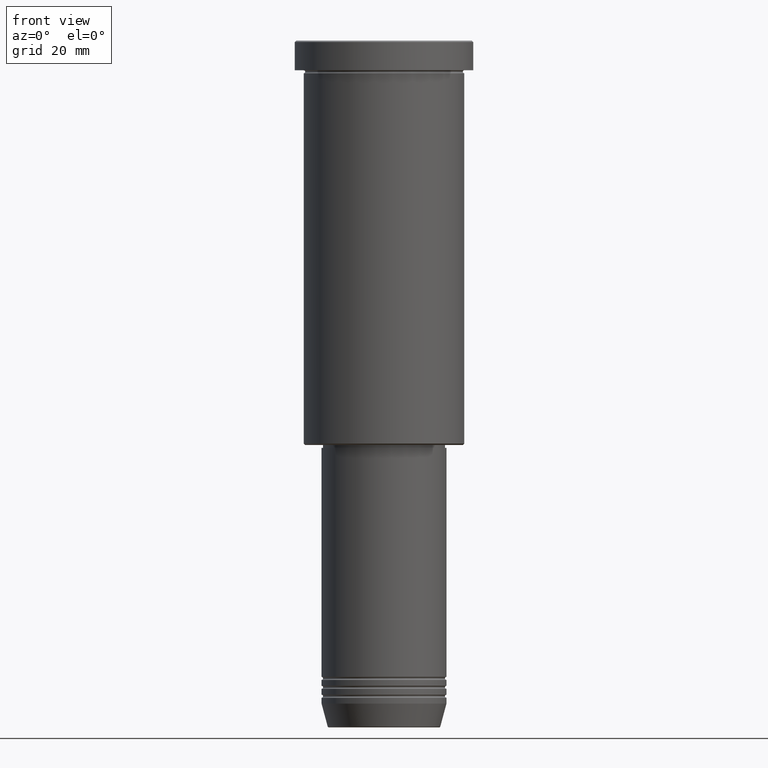
[diagram: clean part render]
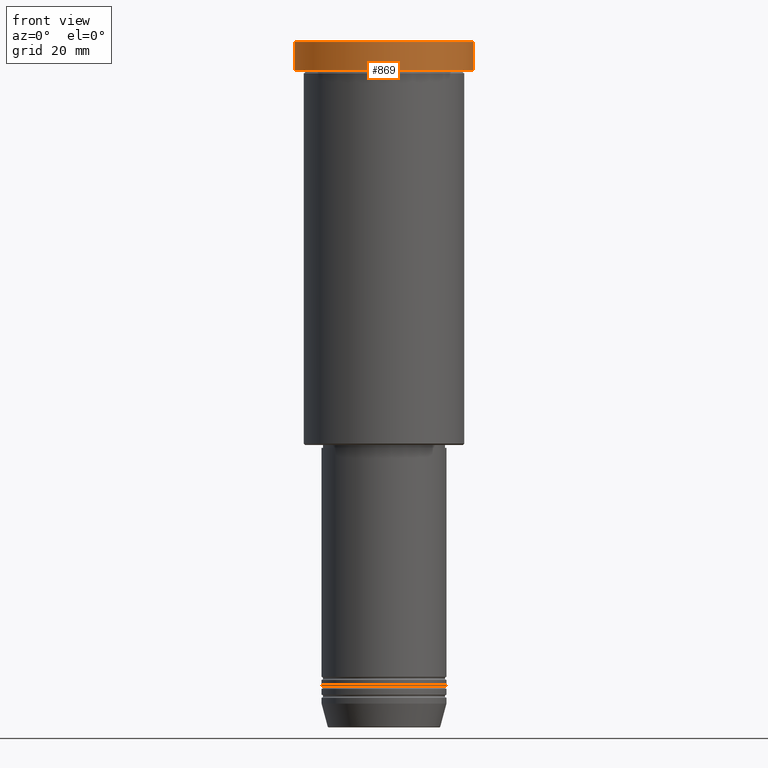
[diagram: same view with one face highlighted and labeled with its STEP entity id]
A machine part, front view. The second image highlights one B-rep face of the part: STEP entity #869.
In plain terms, the highlighted cylindrical surface (partial cylindrical patch) has radius 30 mm, axis along (-0, -0, 1).
Its self-contained STEP definition (entity closure, byte-faithful):
#71 = EDGE_CURVE ( 'NONE', #1124, #1111, #601, .T. ) ;
#74 = VECTOR ( 'NONE', #826, 1000.000000000000000 ) ;
#115 = DIRECTION ( 'NONE',  ( 1.000000000000000000, 0.000000000000000000, 0.000000000000000000 ) ) ;
#127 = EDGE_LOOP ( 'NONE', ( #612, #706, #398, #900 ) ) ;
#137 = CARTESIAN_POINT ( 'NONE',  ( 0.000000000000000000, 0.000000000000000000, -0.5000000000000350830 ) ) ;
#183 = CIRCLE ( 'NONE', #786, 30.00000000000000000 ) ;
#201 = LINE ( 'NONE', #945, #497 ) ;
#231 = DIRECTION ( 'NONE',  ( -0.000000000000000000, -0.000000000000000000, 1.000000000000000000 ) ) ;
#306 = AXIS2_PLACEMENT_3D ( 'NONE', #941, #231, #787 ) ;
#398 = ORIENTED_EDGE ( 'NONE', *, *, #720, .T. ) ;
#453 = AXIS2_PLACEMENT_3D ( 'NONE', #807, #508, #616 ) ;
#497 = VECTOR ( 'NONE', #933, 1000.000000000000000 ) ;
#508 = DIRECTION ( 'NONE',  ( -0.000000000000000000, -0.000000000000000000, 1.000000000000000000 ) ) ;
#513 = DIRECTION ( 'NONE',  ( 0.000000000000000000, 0.000000000000000000, -1.000000000000000000 ) ) ;
#601 = CIRCLE ( 'NONE', #453, 30.00000000000000000 ) ;
#612 = ORIENTED_EDGE ( 'NONE', *, *, #927, .F. ) ;
#616 = DIRECTION ( 'NONE',  ( 1.000000000000000000, 0.000000000000000000, 0.000000000000000000 ) ) ;
#673 = CYLINDRICAL_SURFACE ( 'NONE', #306, 30.00000000000000000 ) ;
#702 = VERTEX_POINT ( 'NONE', #759 ) ;
#706 = ORIENTED_EDGE ( 'NONE', *, *, #71, .T. ) ;
#712 = CARTESIAN_POINT ( 'NONE',  ( 30.00000000000000000, 0.000000000000000000, -9.999999999999992895 ) ) ;
#720 = EDGE_CURVE ( 'NONE', #1111, #702, #930, .T. ) ;
#759 = CARTESIAN_POINT ( 'NONE',  ( 30.00000000000000000, 0.000000000000000000, -0.5000000000000350830 ) ) ;
#762 = CARTESIAN_POINT ( 'NONE',  ( -30.00000000000000000, 3.673940397442059178E-15, -9.999999999999992895 ) ) ;
#786 = AXIS2_PLACEMENT_3D ( 'NONE', #137, #513, #115 ) ;
#787 = DIRECTION ( 'NONE',  ( 1.000000000000000000, 0.000000000000000000, 0.000000000000000000 ) ) ;
#807 = CARTESIAN_POINT ( 'NONE',  ( 0.000000000000000000, 0.000000000000000000, -9.999999999999992895 ) ) ;
#826 = DIRECTION ( 'NONE',  ( -0.000000000000000000, -0.000000000000000000, 1.000000000000000000 ) ) ;
#835 = CARTESIAN_POINT ( 'NONE',  ( 30.00000000000000000, 0.000000000000000000, 0.000000000000000000 ) ) ;
#864 = VERTEX_POINT ( 'NONE', #1033 ) ;
#866 = EDGE_CURVE ( 'NONE', #702, #864, #183, .T. ) ;
#869 = ADVANCED_FACE ( 'NONE', ( #1051 ), #673, .T. ) ;
#900 = ORIENTED_EDGE ( 'NONE', *, *, #866, .T. ) ;
#927 = EDGE_CURVE ( 'NONE', #1124, #864, #201, .T. ) ;
#930 = LINE ( 'NONE', #835, #74 ) ;
#933 = DIRECTION ( 'NONE',  ( -0.000000000000000000, -0.000000000000000000, 1.000000000000000000 ) ) ;
#941 = CARTESIAN_POINT ( 'NONE',  ( 0.000000000000000000, 0.000000000000000000, 0.000000000000000000 ) ) ;
#945 = CARTESIAN_POINT ( 'NONE',  ( -30.00000000000000000, 3.673940397442059178E-15, 0.000000000000000000 ) ) ;
#1033 = CARTESIAN_POINT ( 'NONE',  ( -30.00000000000000000, 3.673940397442059178E-15, -0.5000000000000350830 ) ) ;
#1051 = FACE_OUTER_BOUND ( 'NONE', #127, .T. ) ;
#1111 = VERTEX_POINT ( 'NONE', #712 ) ;
#1124 = VERTEX_POINT ( 'NONE', #762 ) ;